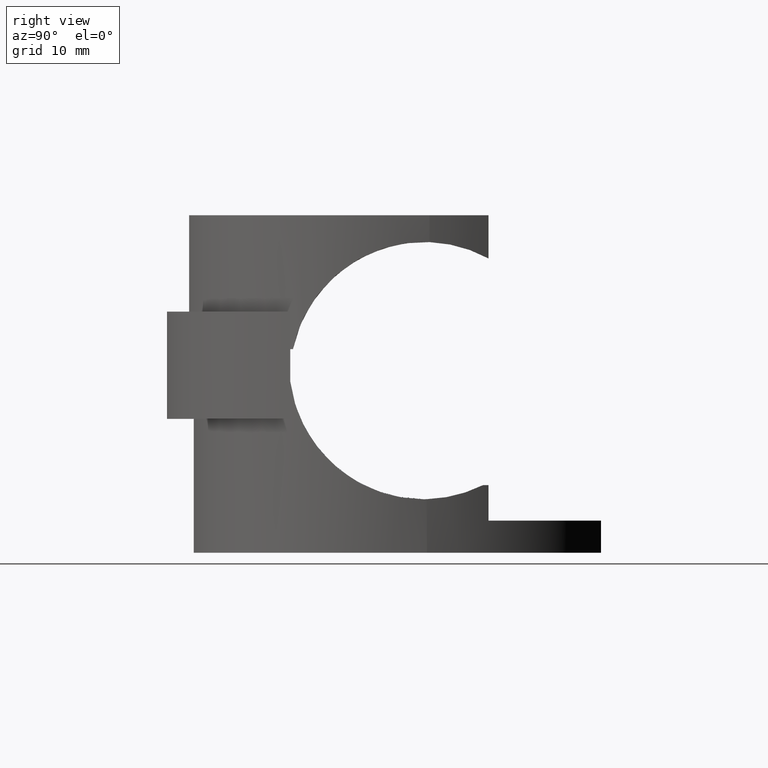
[diagram: clean part render]
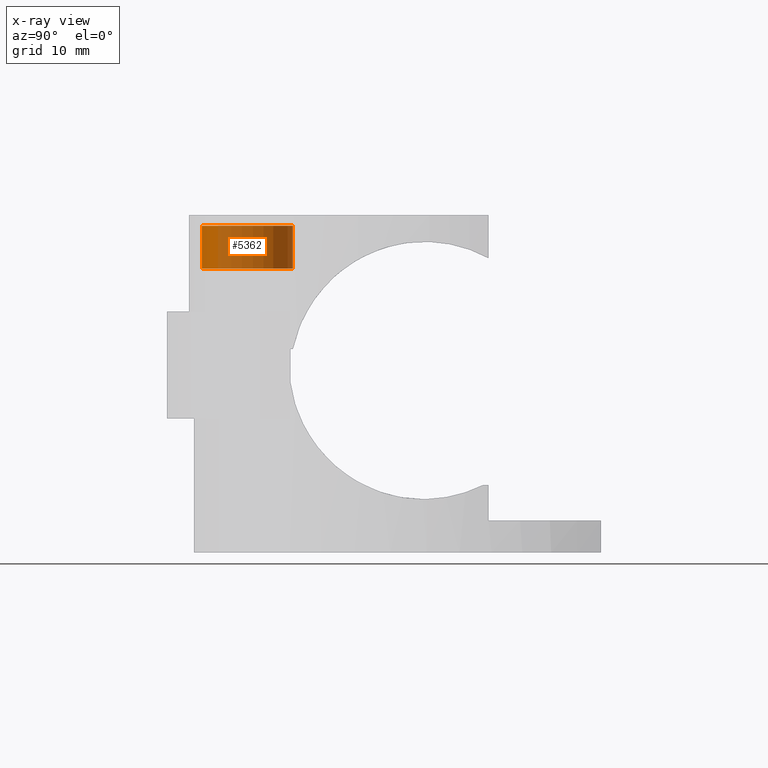
[diagram: x-ray — body ghosted, one internal face saturated and labeled with its STEP entity id]
A machine part, right view, then the same camera in x-ray: the body is ghosted and one INTERNAL B-rep face — a face not visible from any outside direction — is saturated and labeled: STEP entity #5362.
In plain terms, the highlighted cylindrical surface (partial cylindrical patch) has radius 4.25 mm, axis along (0, 0, -1).
Its self-contained STEP definition (entity closure, byte-faithful):
#148 = EDGE_CURVE ( 'NONE', #4413, #13204, #1376, .T. ) ;
#273 = DIRECTION ( 'NONE',  ( 0.0000000000000000000, 0.0000000000000000000, 1.000000000000000000 ) ) ;
#1376 = LINE ( 'NONE', #10110, #4985 ) ;
#1547 = CARTESIAN_POINT ( 'NONE',  ( 0.0000000000000000000, 5.000000000000000000, -4.250000000000000000 ) ) ;
#2540 = CIRCLE ( 'NONE', #3646, 4.250000000000000000 ) ;
#3176 = VERTEX_POINT ( 'NONE', #10137 ) ;
#3274 = DIRECTION ( 'NONE',  ( 0.0000000000000000000, 0.0000000000000000000, 1.000000000000000000 ) ) ;
#3628 = CYLINDRICAL_SURFACE ( 'NONE', #4194, 4.250000000000000000 ) ;
#3646 = AXIS2_PLACEMENT_3D ( 'NONE', #7063, #4600, #3274 ) ;
#4173 = CARTESIAN_POINT ( 'NONE',  ( 5.204748896376250700E-016, 4.000000000000000000, 4.250000000000000000 ) ) ;
#4194 = AXIS2_PLACEMENT_3D ( 'NONE', #4966, #8571, #4879 ) ;
#4227 = EDGE_CURVE ( 'NONE', #3176, #8163, #13920, .T. ) ;
#4413 = VERTEX_POINT ( 'NONE', #4173 ) ;
#4600 = DIRECTION ( 'NONE',  ( -0.0000000000000000000, -1.000000000000000000, -0.0000000000000000000 ) ) ;
#4879 = DIRECTION ( 'NONE',  ( 0.0000000000000000000, 0.0000000000000000000, -1.000000000000000000 ) ) ;
#4966 = CARTESIAN_POINT ( 'NONE',  ( 0.0000000000000000000, 5.000000000000000000, 0.0000000000000000000 ) ) ;
#4985 = VECTOR ( 'NONE', #8821, 1000.000000000000000 ) ;
#5362 = ADVANCED_FACE ( 'NONE', ( #15051 ), #3628, .T. ) ;
#5645 = ORIENTED_EDGE ( 'NONE', *, *, #148, .F. ) ;
#6312 = CARTESIAN_POINT ( 'NONE',  ( 0.0000000000000000000, 0.0000000000000000000, -4.250000000000000000 ) ) ;
#6398 = CARTESIAN_POINT ( 'NONE',  ( 0.0000000000000000000, 0.0000000000000000000, 0.0000000000000000000 ) ) ;
#7063 = CARTESIAN_POINT ( 'NONE',  ( 0.0000000000000000000, 4.000000000000000000, 0.0000000000000000000 ) ) ;
#7703 = EDGE_LOOP ( 'NONE', ( #5645, #14553, #10385, #11864 ) ) ;
#8163 = VERTEX_POINT ( 'NONE', #6312 ) ;
#8571 = DIRECTION ( 'NONE',  ( -0.0000000000000000000, -1.000000000000000000, -0.0000000000000000000 ) ) ;
#8801 = DIRECTION ( 'NONE',  ( 0.0000000000000000000, 1.000000000000000000, 0.0000000000000000000 ) ) ;
#8821 = DIRECTION ( 'NONE',  ( -0.0000000000000000000, -1.000000000000000000, -0.0000000000000000000 ) ) ;
#9121 = CIRCLE ( 'NONE', #12975, 4.250000000000000000 ) ;
#9470 = EDGE_CURVE ( 'NONE', #8163, #13204, #9121, .T. ) ;
#10110 = CARTESIAN_POINT ( 'NONE',  ( 5.204748896376250700E-016, 5.000000000000000000, 4.250000000000000000 ) ) ;
#10120 = VECTOR ( 'NONE', #14903, 1000.000000000000000 ) ;
#10137 = CARTESIAN_POINT ( 'NONE',  ( 0.0000000000000000000, 4.000000000000000000, -4.250000000000000000 ) ) ;
#10385 = ORIENTED_EDGE ( 'NONE', *, *, #4227, .T. ) ;
#11864 = ORIENTED_EDGE ( 'NONE', *, *, #9470, .T. ) ;
#12499 = CARTESIAN_POINT ( 'NONE',  ( 5.204748896376250700E-016, 0.0000000000000000000, 4.250000000000000000 ) ) ;
#12975 = AXIS2_PLACEMENT_3D ( 'NONE', #6398, #8801, #273 ) ;
#13204 = VERTEX_POINT ( 'NONE', #12499 ) ;
#13920 = LINE ( 'NONE', #1547, #10120 ) ;
#14383 = EDGE_CURVE ( 'NONE', #4413, #3176, #2540, .T. ) ;
#14553 = ORIENTED_EDGE ( 'NONE', *, *, #14383, .T. ) ;
#14903 = DIRECTION ( 'NONE',  ( -0.0000000000000000000, -1.000000000000000000, -0.0000000000000000000 ) ) ;
#15051 = FACE_OUTER_BOUND ( 'NONE', #7703, .T. ) ;